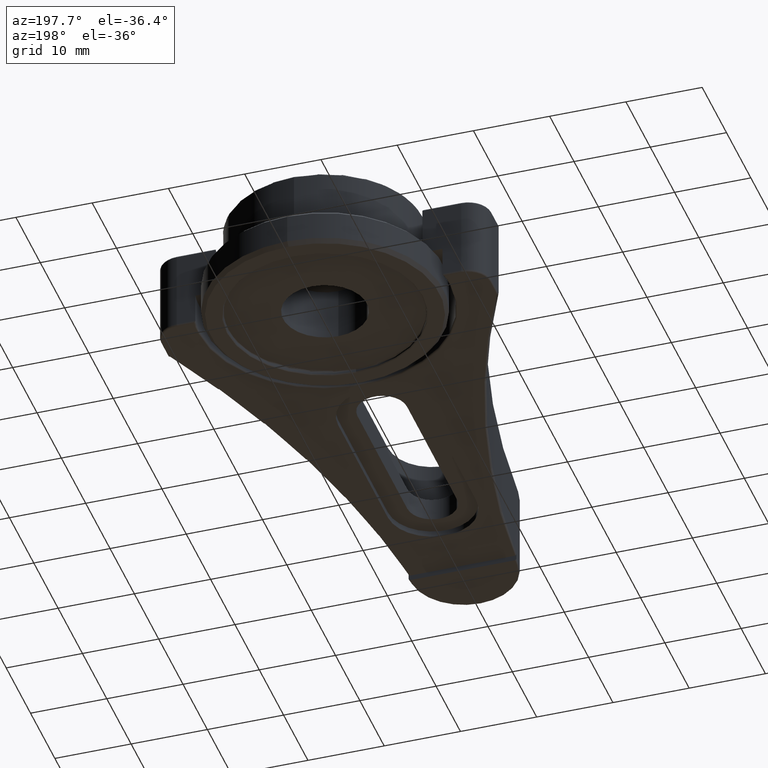
[diagram: clean part render]
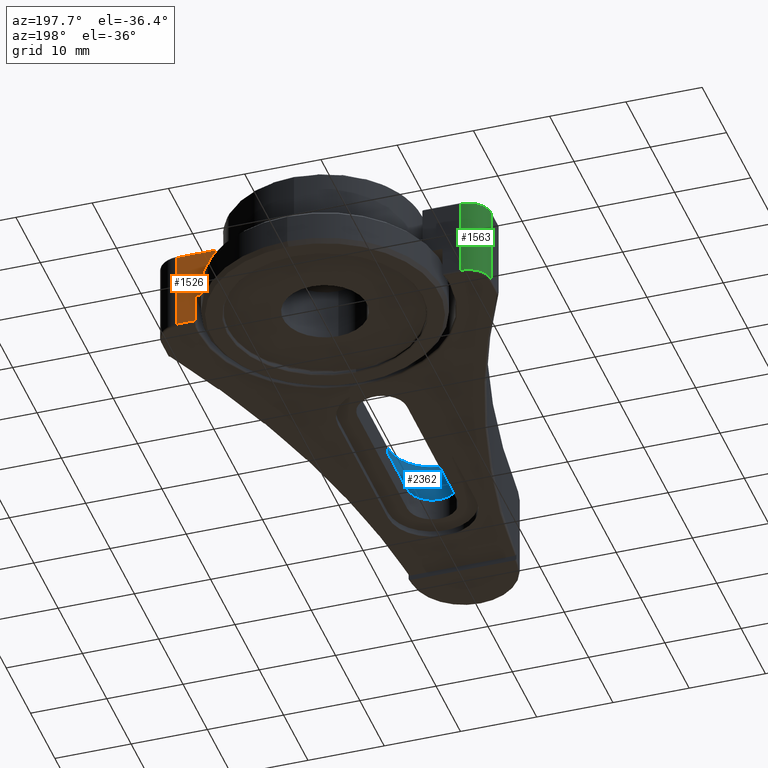
[diagram: same view with three faces highlighted in distinct colors, each labeled with its STEP entity id]
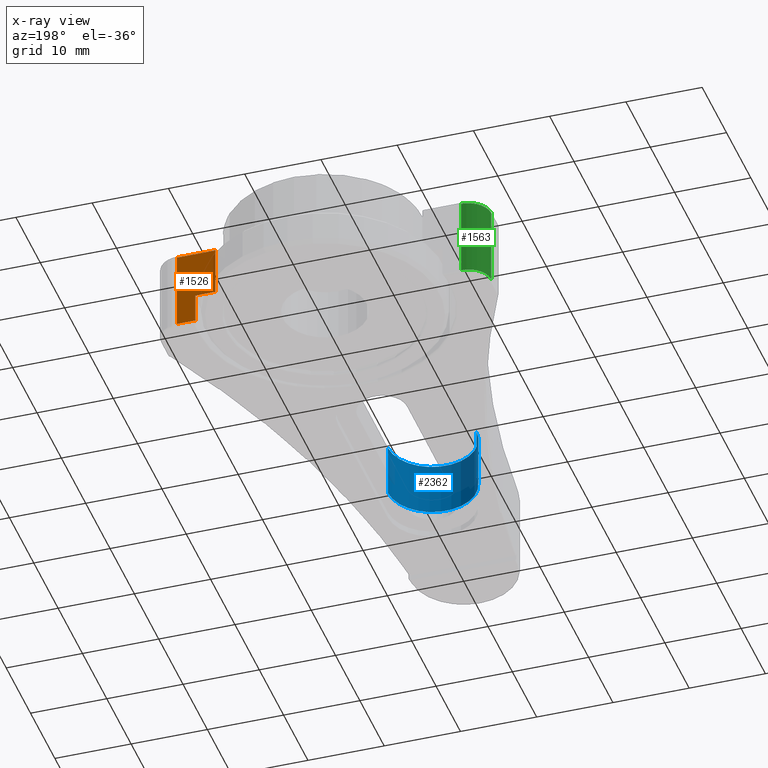
[diagram: x-ray of the same camera — body ghosted, the three highlighted faces saturated]
A machine part, auxiliary view with three faces highlighted in distinct colors.
The next image is the same camera in x-ray (body ghosted, the three faces saturated) — at least one of them is partly hidden behind the body in this view.
Their STEP definitions:

[orange] entity #1526 — the highlighted planar face has unit normal (-0, 1, 0).
#6 = CARTESIAN_POINT ( 'NONE',  ( -1.625981409671001200E-013, 59.49999999999920400, 10.80000000000000100 ) ) ;
#8 = ORIENTED_EDGE ( 'NONE', *, *, #1415, .F. ) ;
#53 = CARTESIAN_POINT ( 'NONE',  ( 13.57166165212475800, 59.49999999999924000, 10.80000000000000100 ) ) ;
#61 = EDGE_LOOP ( 'NONE', ( #8, #964, #1347, #2303, #2473, #2584 ) ) ;
#84 = LINE ( 'NONE', #2206, #1808 ) ;
#177 = EDGE_CURVE ( 'NONE', #2399, #802, #2260, .T. ) ;
#182 = LINE ( 'NONE', #1646, #1050 ) ;
#220 = LINE ( 'NONE', #53, #2444 ) ;
#324 = EDGE_CURVE ( 'NONE', #2438, #493, #182, .T. ) ;
#333 = CARTESIAN_POINT ( 'NONE',  ( 16.20833119109757800, 59.49999999999976600, 4.099999999999999600 ) ) ;
#380 = AXIS2_PLACEMENT_3D ( 'NONE', #6, #1963, #1282 ) ;
#436 = CARTESIAN_POINT ( 'NONE',  ( 18.64999999999077900, 59.49999999999925400, 10.55000000000000100 ) ) ;
#493 = VERTEX_POINT ( 'NONE', #626 ) ;
#547 = CARTESIAN_POINT ( 'NONE',  ( 18.64999999999077900, 59.49999999999925400, 0.2500000000000036600 ) ) ;
#626 = CARTESIAN_POINT ( 'NONE',  ( 13.57166165214317200, 59.49999999999923300, 4.099999999999999600 ) ) ;
#695 = VERTEX_POINT ( 'NONE', #1208 ) ;
#802 = VERTEX_POINT ( 'NONE', #1273 ) ;
#847 = VERTEX_POINT ( 'NONE', #436 ) ;
#900 = CARTESIAN_POINT ( 'NONE',  ( -1.625981409671001200E-013, 59.49999999999920400, 10.55000000000000100 ) ) ;
#920 = DIRECTION ( 'NONE',  ( -0.0000000000000000000, -0.0000000000000000000, -1.000000000000000000 ) ) ;
#948 = LINE ( 'NONE', #1351, #1501 ) ;
#964 = ORIENTED_EDGE ( 'NONE', *, *, #1525, .T. ) ;
#1050 = VECTOR ( 'NONE', #2485, 1000.000000000000000 ) ;
#1109 = DIRECTION ( 'NONE',  ( 1.000000000000000000, 2.732741864993315900E-015, 0.0000000000000000000 ) ) ;
#1208 = CARTESIAN_POINT ( 'NONE',  ( 13.57166165212475800, 59.49999999999924000, 10.55000000000000100 ) ) ;
#1273 = CARTESIAN_POINT ( 'NONE',  ( 16.20833119109757800, 59.49999999999976600, 0.2500000000000002200 ) ) ;
#1282 = DIRECTION ( 'NONE',  ( -1.000000000000000000, -2.732741864993315900E-015, 0.0000000000000000000 ) ) ;
#1347 = ORIENTED_EDGE ( 'NONE', *, *, #1412, .T. ) ;
#1351 = CARTESIAN_POINT ( 'NONE',  ( 16.20833119109757800, 59.49999999999976600, 4.099999999999999600 ) ) ;
#1412 = EDGE_CURVE ( 'NONE', #847, #2399, #84, .T. ) ;
#1415 = EDGE_CURVE ( 'NONE', #695, #493, #220, .T. ) ;
#1501 = VECTOR ( 'NONE', #1543, 1000.000000000000000 ) ;
#1525 = EDGE_CURVE ( 'NONE', #695, #847, #1899, .T. ) ;
#1526 = ADVANCED_FACE ( 'NONE', ( #2255 ), #1955, .T. ) ;
#1534 = VECTOR ( 'NONE', #1109, 1000.000000000000000 ) ;
#1543 = DIRECTION ( 'NONE',  ( 0.0000000000000000000, 0.0000000000000000000, -1.000000000000000000 ) ) ;
#1565 = DIRECTION ( 'NONE',  ( -0.0000000000000000000, -0.0000000000000000000, -1.000000000000000000 ) ) ;
#1572 = VECTOR ( 'NONE', #2134, 1000.000000000000000 ) ;
#1646 = CARTESIAN_POINT ( 'NONE',  ( 13.57166165214320200, 59.49999999999924000, 4.099999999999999600 ) ) ;
#1808 = VECTOR ( 'NONE', #1565, 1000.000000000000000 ) ;
#1899 = LINE ( 'NONE', #900, #1534 ) ;
#1955 = PLANE ( 'NONE',  #380 ) ;
#1963 = DIRECTION ( 'NONE',  ( -2.732741864993315900E-015, 1.000000000000000000, 0.0000000000000000000 ) ) ;
#2134 = DIRECTION ( 'NONE',  ( -1.000000000000000000, -2.732741864993315900E-015, -0.0000000000000000000 ) ) ;
#2202 = EDGE_CURVE ( 'NONE', #2438, #802, #948, .T. ) ;
#2206 = CARTESIAN_POINT ( 'NONE',  ( 18.64999999999077900, 59.49999999999925400, 10.80000000000000100 ) ) ;
#2255 = FACE_OUTER_BOUND ( 'NONE', #61, .T. ) ;
#2260 = LINE ( 'NONE', #2350, #1572 ) ;
#2303 = ORIENTED_EDGE ( 'NONE', *, *, #177, .T. ) ;
#2350 = CARTESIAN_POINT ( 'NONE',  ( 16.20833119109757800, 59.49999999999924700, 0.2500000000000000000 ) ) ;
#2399 = VERTEX_POINT ( 'NONE', #547 ) ;
#2438 = VERTEX_POINT ( 'NONE', #333 ) ;
#2444 = VECTOR ( 'NONE', #920, 1000.000000000000000 ) ;
#2473 = ORIENTED_EDGE ( 'NONE', *, *, #2202, .F. ) ;
#2485 = DIRECTION ( 'NONE',  ( -1.000000000000000000, -2.000083548225323500E-013, -0.0000000000000000000 ) ) ;
#2584 = ORIENTED_EDGE ( 'NONE', *, *, #324, .T. ) ;

[blue] entity #2362 — the highlighted cylindrical surface (partial cylindrical patch) has radius 5.8 mm, axis along (-0, -0, 1).
#131 = DIRECTION ( 'NONE',  ( -0.0000000000000000000, -0.0000000000000000000, 1.000000000000000000 ) ) ;
#179 = CARTESIAN_POINT ( 'NONE',  ( 0.0000000000000000000, 13.00000000000078900, 10.80000000000000100 ) ) ;
#211 = CARTESIAN_POINT ( 'NONE',  ( 5.800000000000011400, 13.00000000000078900, 10.80000000000000100 ) ) ;
#470 = EDGE_CURVE ( 'NONE', #2598, #1926, #1944, .T. ) ;
#602 = DIRECTION ( 'NONE',  ( 1.000000000000000000, 0.0000000000000000000, 0.0000000000000000000 ) ) ;
#723 = CARTESIAN_POINT ( 'NONE',  ( -5.800000000000010500, 13.00000000000078900, 3.800000000000000300 ) ) ;
#741 = LINE ( 'NONE', #2522, #1947 ) ;
#841 = FACE_OUTER_BOUND ( 'NONE', #1893, .T. ) ;
#856 = CIRCLE ( 'NONE', #1356, 5.800000000000011400 ) ;
#982 = EDGE_CURVE ( 'NONE', #2598, #1137, #2334, .T. ) ;
#1007 = CARTESIAN_POINT ( 'NONE',  ( -5.800000000000010500, 13.00000000000078900, 3.800000000000000300 ) ) ;
#1075 = EDGE_CURVE ( 'NONE', #1137, #1653, #856, .T. ) ;
#1137 = VERTEX_POINT ( 'NONE', #1980 ) ;
#1195 = ORIENTED_EDGE ( 'NONE', *, *, #1075, .T. ) ;
#1293 = CARTESIAN_POINT ( 'NONE',  ( 5.800000000000011400, 13.00000000000078900, 3.800000000000000300 ) ) ;
#1356 = AXIS2_PLACEMENT_3D ( 'NONE', #179, #1456, #1895 ) ;
#1364 = CARTESIAN_POINT ( 'NONE',  ( 0.0000000000000000000, 13.00000000000078900, 3.800000000000000300 ) ) ;
#1456 = DIRECTION ( 'NONE',  ( 0.0000000000000000000, 0.0000000000000000000, 1.000000000000000000 ) ) ;
#1471 = DIRECTION ( 'NONE',  ( 0.0000000000000000000, 0.0000000000000000000, 1.000000000000000000 ) ) ;
#1479 = CARTESIAN_POINT ( 'NONE',  ( 0.0000000000000000000, 13.00000000000078900, 3.800000000000000300 ) ) ;
#1584 = DIRECTION ( 'NONE',  ( -0.0000000000000000000, -0.0000000000000000000, 1.000000000000000000 ) ) ;
#1612 = CYLINDRICAL_SURFACE ( 'NONE', #2257, 5.800000000000011400 ) ;
#1623 = DIRECTION ( 'NONE',  ( 1.000000000000000000, 0.0000000000000000000, 0.0000000000000000000 ) ) ;
#1653 = VERTEX_POINT ( 'NONE', #211 ) ;
#1704 = ORIENTED_EDGE ( 'NONE', *, *, #2595, .F. ) ;
#1782 = VECTOR ( 'NONE', #1584, 1000.000000000000000 ) ;
#1893 = EDGE_LOOP ( 'NONE', ( #1195, #1704, #2231, #2031 ) ) ;
#1895 = DIRECTION ( 'NONE',  ( 1.000000000000000000, 0.0000000000000000000, 0.0000000000000000000 ) ) ;
#1926 = VERTEX_POINT ( 'NONE', #1293 ) ;
#1944 = CIRCLE ( 'NONE', #2439, 5.800000000000011400 ) ;
#1947 = VECTOR ( 'NONE', #2324, 1000.000000000000000 ) ;
#1980 = CARTESIAN_POINT ( 'NONE',  ( -5.800000000000010500, 13.00000000000078900, 10.80000000000000100 ) ) ;
#2031 = ORIENTED_EDGE ( 'NONE', *, *, #982, .T. ) ;
#2231 = ORIENTED_EDGE ( 'NONE', *, *, #470, .F. ) ;
#2257 = AXIS2_PLACEMENT_3D ( 'NONE', #1364, #131, #1623 ) ;
#2324 = DIRECTION ( 'NONE',  ( -0.0000000000000000000, -0.0000000000000000000, 1.000000000000000000 ) ) ;
#2334 = LINE ( 'NONE', #723, #1782 ) ;
#2362 = ADVANCED_FACE ( 'NONE', ( #841 ), #1612, .F. ) ;
#2439 = AXIS2_PLACEMENT_3D ( 'NONE', #1479, #1471, #602 ) ;
#2522 = CARTESIAN_POINT ( 'NONE',  ( 5.800000000000011400, 13.00000000000078900, 3.800000000000000300 ) ) ;
#2595 = EDGE_CURVE ( 'NONE', #1926, #1653, #741, .T. ) ;
#2598 = VERTEX_POINT ( 'NONE', #1007 ) ;

[green] entity #1563 — the highlighted cylindrical surface (edge-blend (fillet) strip) has radius 3 mm, axis along (-0, -0, -1).
#34 = VERTEX_POINT ( 'NONE', #2281 ) ;
#236 = DIRECTION ( 'NONE',  ( -1.000000000000000000, 0.0000000000000000000, 0.0000000000000000000 ) ) ;
#290 = AXIS2_PLACEMENT_3D ( 'NONE', #2387, #2183, #1106 ) ;
#541 = VECTOR ( 'NONE', #1541, 1000.000000000000000 ) ;
#700 = CARTESIAN_POINT ( 'NONE',  ( -18.65000000000922100, 59.49999999999925400, 10.55000000000000100 ) ) ;
#869 = DIRECTION ( 'NONE',  ( -0.0000000000000000000, -0.0000000000000000000, -1.000000000000000000 ) ) ;
#926 = EDGE_LOOP ( 'NONE', ( #1285, #1706, #1202, #1187 ) ) ;
#1089 = DIRECTION ( 'NONE',  ( -0.0000000000000000000, -0.0000000000000000000, -1.000000000000000000 ) ) ;
#1106 = DIRECTION ( 'NONE',  ( 1.000000000000000000, 0.0000000000000000000, 0.0000000000000000000 ) ) ;
#1120 = LINE ( 'NONE', #2177, #541 ) ;
#1187 = ORIENTED_EDGE ( 'NONE', *, *, #2453, .T. ) ;
#1202 = ORIENTED_EDGE ( 'NONE', *, *, #2675, .F. ) ;
#1284 = AXIS2_PLACEMENT_3D ( 'NONE', #1522, #1089, #236 ) ;
#1285 = ORIENTED_EDGE ( 'NONE', *, *, #1540, .T. ) ;
#1339 = VERTEX_POINT ( 'NONE', #2400 ) ;
#1340 = EDGE_CURVE ( 'NONE', #1339, #2061, #2330, .T. ) ;
#1390 = CYLINDRICAL_SURFACE ( 'NONE', #1284, 3.000000000000006200 ) ;
#1398 = CARTESIAN_POINT ( 'NONE',  ( -18.65000000000922100, 56.49999999999924700, 10.55000000000000100 ) ) ;
#1522 = CARTESIAN_POINT ( 'NONE',  ( -18.65000000000922100, 56.49999999999924700, 10.80000000000000100 ) ) ;
#1540 = EDGE_CURVE ( 'NONE', #2122, #1339, #1120, .T. ) ;
#1541 = DIRECTION ( 'NONE',  ( -0.0000000000000000000, -0.0000000000000000000, -1.000000000000000000 ) ) ;
#1563 = ADVANCED_FACE ( 'NONE', ( #2529 ), #1390, .T. ) ;
#1706 = ORIENTED_EDGE ( 'NONE', *, *, #1340, .T. ) ;
#1718 = CARTESIAN_POINT ( 'NONE',  ( -21.65000000000922500, 56.49999999999924700, 10.80000000000000100 ) ) ;
#1815 = VECTOR ( 'NONE', #869, 1000.000000000000000 ) ;
#2054 = DIRECTION ( 'NONE',  ( 0.0000000000000000000, -0.0000000000000000000, -1.000000000000000000 ) ) ;
#2061 = VERTEX_POINT ( 'NONE', #2152 ) ;
#2122 = VERTEX_POINT ( 'NONE', #700 ) ;
#2152 = CARTESIAN_POINT ( 'NONE',  ( -21.65000000000922500, 56.49999999999924700, 0.2500000000000036600 ) ) ;
#2177 = CARTESIAN_POINT ( 'NONE',  ( -18.65000000000922100, 59.49999999999925400, 10.80000000000000100 ) ) ;
#2183 = DIRECTION ( 'NONE',  ( -0.0000000000000000000, 0.0000000000000000000, 1.000000000000000000 ) ) ;
#2224 = AXIS2_PLACEMENT_3D ( 'NONE', #1398, #2054, #2492 ) ;
#2281 = CARTESIAN_POINT ( 'NONE',  ( -21.65000000000922500, 56.49999999999924700, 10.55000000000000100 ) ) ;
#2330 = CIRCLE ( 'NONE', #290, 3.000000000000006200 ) ;
#2378 = LINE ( 'NONE', #1718, #1815 ) ;
#2387 = CARTESIAN_POINT ( 'NONE',  ( -18.65000000000922100, 56.49999999999924700, 0.2500000000000002200 ) ) ;
#2400 = CARTESIAN_POINT ( 'NONE',  ( -18.65000000000922100, 59.49999999999925400, 0.2500000000000036600 ) ) ;
#2453 = EDGE_CURVE ( 'NONE', #34, #2122, #2766, .T. ) ;
#2492 = DIRECTION ( 'NONE',  ( 1.000000000000000000, 0.0000000000000000000, 0.0000000000000000000 ) ) ;
#2529 = FACE_OUTER_BOUND ( 'NONE', #926, .T. ) ;
#2675 = EDGE_CURVE ( 'NONE', #34, #2061, #2378, .T. ) ;
#2766 = CIRCLE ( 'NONE', #2224, 3.000000000000006200 ) ;